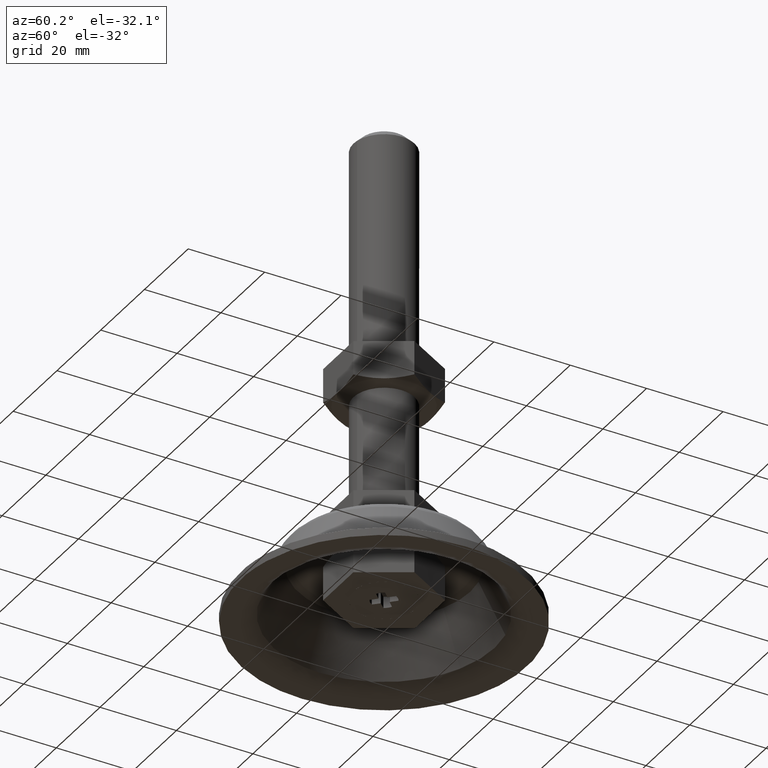
[diagram: clean part render]
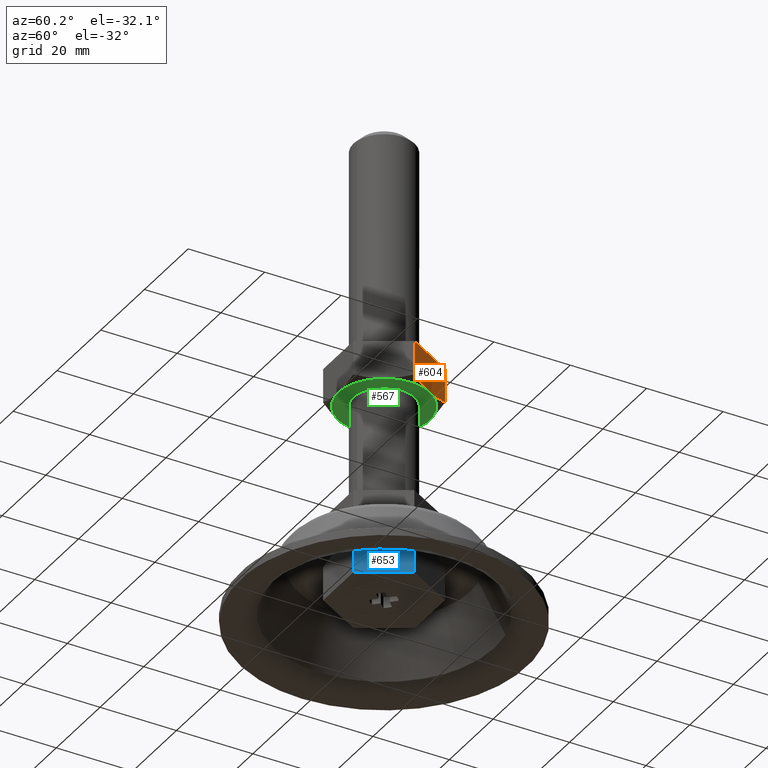
[diagram: same view with three faces highlighted in distinct colors, each labeled with its STEP entity id]
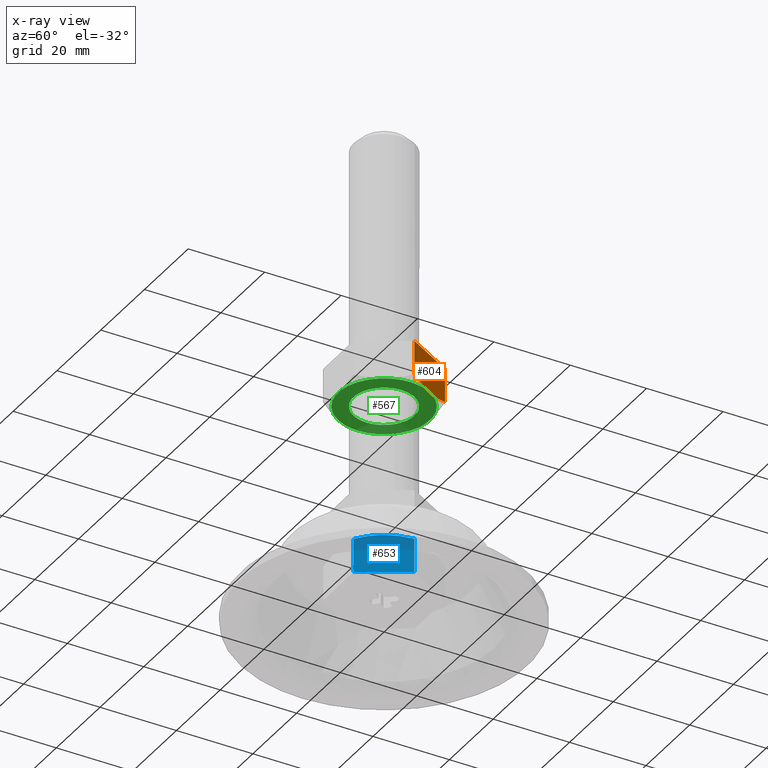
[diagram: x-ray of the same camera — body ghosted, the three highlighted faces saturated]
A machine part, auxiliary view with three faces highlighted in distinct colors.
The next image is the same camera in x-ray (body ghosted, the three faces saturated) — at least one of them is partly hidden behind the body in this view.
Their STEP definitions:

[orange] entity #604 — the highlighted face is a freeform B-spline surface patch.
#96=CARTESIAN_POINT('',(10.125658212932370,6.450755718335135,58.007101989371378));
#97=VERTEX_POINT('',#96);
#103=CARTESIAN_POINT('',(13.850000000000000,-5.167138E-016,59.071796703249987));
#104=VERTEX_POINT('',#103);
#105=CARTESIAN_POINT('',(10.125658212932370,6.450755718335135,58.007101989371378));
#106=CARTESIAN_POINT('',(10.210038043268471,6.304605420740629,58.002846403497273));
#107=CARTESIAN_POINT('',(10.294564689755051,6.158200829620186,58.000631574965396));
#108=CARTESIAN_POINT('',(10.526500947255940,5.756475049477983,58.000262969103602));
#109=CARTESIAN_POINT('',(10.674507272139460,5.500120320191513,58.006339490179009));
#110=CARTESIAN_POINT('',(10.969170929426250,4.989747385975759,58.030917346048682));
#111=CARTESIAN_POINT('',(11.115990930770421,4.735447429900201,58.049390284622497));
#112=CARTESIAN_POINT('',(11.554981850050750,3.975092091522123,58.122558907262622));
#113=CARTESIAN_POINT('',(11.845680240527500,3.471587202013053,58.195045993798082));
#114=CARTESIAN_POINT('',(12.712600177523910,1.970036303936064,58.475035580530331));
#115=CARTESIAN_POINT('',(13.283666643734421,0.980919157844716,58.744822901260783));
#116=CARTESIAN_POINT('',(13.850000000000000,-5.167138E-016,59.071796703249987));
#117=B_SPLINE_CURVE_WITH_KNOTS('',3,(#105,#106,#107,#108,#109,#110,#111,#112,#113,#114,#115,#116),.UNSPECIFIED.,.F.,.U.,(4,2,2,2,2,4),(0.464061722818910,0.500000000000000,0.562500000000000,0.625000000000000,0.750000000000000,1.0),.UNSPECIFIED.);
#118=EDGE_CURVE('',#97,#104,#117,.T.);
#258=CARTESIAN_POINT('',(6.921797000000001,12.0,59.073646796981613));
#259=VERTEX_POINT('',#258);
#282=CARTESIAN_POINT('',(6.921797000000001,12.0,59.073646796981613));
#283=CARTESIAN_POINT('',(7.487396223851416,11.020354509957240,58.746870723399098));
#284=CARTESIAN_POINT('',(8.057124198522770,10.033557812245210,58.477484564008449));
#285=CARTESIAN_POINT('',(8.920642641350582,8.537901644169020,58.197484008929791));
#286=CARTESIAN_POINT('',(9.209973474129754,8.036766490457143,58.124880381440832));
#287=CARTESIAN_POINT('',(9.708341470766662,7.173568738297111,58.040728662463081));
#288=CARTESIAN_POINT('',(9.916549012621756,6.812943087605442,58.017648769318313));
#289=CARTESIAN_POINT('',(10.125658212932370,6.450755718335135,58.007101989371378));
#290=B_SPLINE_CURVE_WITH_KNOTS('',3,(#282,#283,#284,#285,#286,#287,#288,#289),.UNSPECIFIED.,.F.,.U.,(4,2,2,4),(0.0,0.250000000000000,0.375000000000000,0.464061722818910),.UNSPECIFIED.);
#291=EDGE_CURVE('',#259,#97,#290,.T.);
#522=CARTESIAN_POINT('',(13.850000000000000,0.0,68.0));
#523=VERTEX_POINT('',#522);
#529=CARTESIAN_POINT('',(6.921797000000001,12.0,68.0));
#530=VERTEX_POINT('',#529);
#531=CARTESIAN_POINT('',(13.850000000000000,0.0,68.0));
#532=CARTESIAN_POINT('',(6.921797000000001,12.0,68.0));
#533=QUASI_UNIFORM_CURVE('',1,(#531,#532),.UNSPECIFIED.,.F.,.U.);
#534=EDGE_CURVE('',#523,#530,#533,.T.);
#580=CARTESIAN_POINT('',(6.921797000000001,12.0,68.0));
#581=CARTESIAN_POINT('',(6.921797000000001,12.0,59.073646796981613));
#582=QUASI_UNIFORM_CURVE('',1,(#580,#581),.UNSPECIFIED.,.F.,.U.);
#583=EDGE_CURVE('',#530,#259,#582,.T.);
#588=CARTESIAN_POINT('',(6.575733208541248,12.599400089389130,57.501024654651140));
#589=CARTESIAN_POINT('',(14.196063915344730,-0.599400303965811,57.501024654651140));
#590=CARTESIAN_POINT('',(6.575733208541249,12.599400089389130,68.499475289988823));
#591=CARTESIAN_POINT('',(14.196063915344730,-0.599400303965811,68.499475289988823));
#592=B_SPLINE_SURFACE_WITH_KNOTS('',1,1,((#588,#590),(#589,#591)),.UNSPECIFIED.,.F.,.F.,.U.,(2,2),(2,2),(0.0,15.240661793527160),(0.0,10.998450635337679),.UNSPECIFIED.);
#593=ORIENTED_EDGE('',*,*,#118,.F.);
#594=ORIENTED_EDGE('',*,*,#291,.F.);
#595=ORIENTED_EDGE('',*,*,#583,.F.);
#596=ORIENTED_EDGE('',*,*,#534,.F.);
#597=CARTESIAN_POINT('',(13.850000000000000,0.0,68.0));
#598=CARTESIAN_POINT('',(13.850000000000000,-5.167138E-016,59.071796703249987));
#599=QUASI_UNIFORM_CURVE('',1,(#597,#598),.UNSPECIFIED.,.F.,.U.);
#600=EDGE_CURVE('',#523,#104,#599,.T.);
#601=ORIENTED_EDGE('',*,*,#600,.T.);
#602=EDGE_LOOP('',(#593,#594,#595,#596,#601));
#603=FACE_OUTER_BOUND('',#602,.T.);
#604=ADVANCED_FACE('',(#603),#592,.F.);

[blue] entity #653 — the highlighted face is a freeform B-spline surface patch.
#141=CARTESIAN_POINT('',(-6.921797000000001,-12.0,59.073646796981500));
#142=VERTEX_POINT('',#141);
#165=CARTESIAN_POINT('',(-10.125658212932310,-6.450755718335096,58.007101989371343));
#166=VERTEX_POINT('',#165);
#167=CARTESIAN_POINT('',(-6.921797000000001,-12.0,59.073646796981500));
#168=CARTESIAN_POINT('',(-7.487396223851322,-11.020354509957180,58.746870723399063));
#169=CARTESIAN_POINT('',(-8.057124198522686,-10.033557812245149,58.477484564008400));
#170=CARTESIAN_POINT('',(-8.920642641350508,-8.537901644168967,58.197484008929742));
#171=CARTESIAN_POINT('',(-9.209973474129685,-8.036766490457092,58.124880381440761));
#172=CARTESIAN_POINT('',(-9.708341470766602,-7.173568738297067,58.040728662463060));
#173=CARTESIAN_POINT('',(-9.916549012621696,-6.812943087605401,58.017648769318278));
#174=CARTESIAN_POINT('',(-10.125658212932310,-6.450755718335096,58.007101989371343));
#175=B_SPLINE_CURVE_WITH_KNOTS('',3,(#167,#168,#169,#170,#171,#172,#173,#174),.UNSPECIFIED.,.F.,.U.,(4,2,2,4),(0.0,0.250000000000000,0.375000000000000,0.464061722818909),.UNSPECIFIED.);
#176=EDGE_CURVE('',#142,#166,#175,.T.);
#220=CARTESIAN_POINT('',(-13.850000000000000,-1.766622E-016,59.071796703249987));
#221=VERTEX_POINT('',#220);
#222=CARTESIAN_POINT('',(-10.125658212932310,-6.450755718335096,58.007101989371343));
#223=CARTESIAN_POINT('',(-10.210038043268410,-6.304605420740590,58.002846403497223));
#224=CARTESIAN_POINT('',(-10.294564689754999,-6.158200829620145,58.000631574965361));
#225=CARTESIAN_POINT('',(-10.526500947255890,-5.756475049477941,58.000262969103559));
#226=CARTESIAN_POINT('',(-10.674507272139399,-5.500120320191493,58.006339490178974));
#227=CARTESIAN_POINT('',(-10.969170929426200,-4.989747385975742,58.030917346048682));
#228=CARTESIAN_POINT('',(-11.115990930770369,-4.735447429900183,58.049390284622497));
#229=CARTESIAN_POINT('',(-11.554981850050710,-3.975092091522107,58.122558907262608));
#230=CARTESIAN_POINT('',(-11.845680240527461,-3.471587202013042,58.195045993798061));
#231=CARTESIAN_POINT('',(-12.712600177523891,-1.970036303936060,58.475035580530331));
#232=CARTESIAN_POINT('',(-13.283666643734421,-0.980919157844711,58.744822901260761));
#233=CARTESIAN_POINT('',(-13.850000000000000,-1.766622E-016,59.071796703249987));
#234=B_SPLINE_CURVE_WITH_KNOTS('',3,(#222,#223,#224,#225,#226,#227,#228,#229,#230,#231,#232,#233),.UNSPECIFIED.,.F.,.U.,(4,2,2,2,2,4),(0.464061722818909,0.500000000000000,0.562500000000000,0.625000000000000,0.750000000000000,1.0),.UNSPECIFIED.);
#235=EDGE_CURVE('',#166,#221,#234,.T.);
#501=CARTESIAN_POINT('',(-13.850000000000000,0.0,68.0));
#502=VERTEX_POINT('',#501);
#508=CARTESIAN_POINT('',(-6.921797000000001,-12.0,68.0));
#509=VERTEX_POINT('',#508);
#510=CARTESIAN_POINT('',(-13.850000000000000,0.0,68.0));
#511=CARTESIAN_POINT('',(-6.921797000000001,-12.0,68.0));
#512=QUASI_UNIFORM_CURVE('',1,(#510,#511),.UNSPECIFIED.,.F.,.U.);
#513=EDGE_CURVE('',#502,#509,#512,.T.);
#629=CARTESIAN_POINT('',(-6.921797000000001,-12.0,68.0));
#630=CARTESIAN_POINT('',(-6.921797000000001,-12.0,59.073646796981500));
#631=QUASI_UNIFORM_CURVE('',1,(#629,#630),.UNSPECIFIED.,.F.,.U.);
#632=EDGE_CURVE('',#509,#142,#631,.T.);
#637=CARTESIAN_POINT('',(-6.575733208541143,-12.599400089389061,57.501024654651090));
#638=CARTESIAN_POINT('',(-14.196063915344739,0.599400303965808,57.501024654651090));
#639=CARTESIAN_POINT('',(-6.575733208541143,-12.599400089389061,68.499475289988837));
#640=CARTESIAN_POINT('',(-14.196063915344739,0.599400303965808,68.499475289988837));
#641=B_SPLINE_SURFACE_WITH_KNOTS('',1,1,((#637,#639),(#638,#640)),.UNSPECIFIED.,.F.,.F.,.U.,(2,2),(2,2),(0.0,15.240661793527160),(0.0,10.998450635337750),.UNSPECIFIED.);
#642=ORIENTED_EDGE('',*,*,#235,.F.);
#643=ORIENTED_EDGE('',*,*,#176,.F.);
#644=ORIENTED_EDGE('',*,*,#632,.F.);
#645=ORIENTED_EDGE('',*,*,#513,.F.);
#646=CARTESIAN_POINT('',(-13.850000000000000,0.0,68.0));
#647=CARTESIAN_POINT('',(-13.850000000000000,-1.766622E-016,59.071796703249987));
#648=QUASI_UNIFORM_CURVE('',1,(#646,#647),.UNSPECIFIED.,.F.,.U.);
#649=EDGE_CURVE('',#502,#221,#648,.T.);
#650=ORIENTED_EDGE('',*,*,#649,.T.);
#651=EDGE_LOOP('',(#642,#643,#644,#645,#650));
#652=FACE_OUTER_BOUND('',#651,.T.);
#653=ADVANCED_FACE('',(#652),#641,.F.);

[green] entity #567 — the highlighted face is a freeform B-spline surface patch.
#62=CARTESIAN_POINT('',(-10.115294292789720,-6.444153173358881,58.000000000002707));
#63=VERTEX_POINT('',#62);
#64=CARTESIAN_POINT('',(11.993593654586739,0.0,58.0));
#65=VERTEX_POINT('',#64);
#66=CARTESIAN_POINT('',(-10.115294292789716,-6.444153173358881,58.000000000002707));
#67=CARTESIAN_POINT('',(-6.579910797955506,-11.993593654586743,57.999999999999993));
#68=CARTESIAN_POINT('',(0.0,-11.993593654586739,58.0));
#69=CARTESIAN_POINT('',(11.993593654586743,-11.993593654586743,58.0));
#70=CARTESIAN_POINT('',(11.993593654586739,0.0,58.0));
#78=(BOUNDED_CURVE()B_SPLINE_CURVE(2,(#66,#67,#68,#69,#70),.UNSPECIFIED.,.F.,.U.)B_SPLINE_CURVE_WITH_KNOTS((3,2,3),(0.091950076716405,0.250000000000000,0.500000000000000),.UNSPECIFIED.)CURVE()GEOMETRIC_REPRESENTATION_ITEM()RATIONAL_B_SPLINE_CURVE((0.863791038909963,0.814832996944995,1.0,0.707106781186548,1.0))REPRESENTATION_ITEM(''));
#79=EDGE_CURVE('',#63,#65,#78,.T.);
#81=CARTESIAN_POINT('',(10.115294292789720,6.444153173358879,58.000000000002700));
#82=VERTEX_POINT('',#81);
#83=CARTESIAN_POINT('',(11.993593654586739,0.0,58.0));
#84=CARTESIAN_POINT('',(11.993593654586743,3.495813755726101,58.000000000000007));
#85=CARTESIAN_POINT('',(10.115294292789716,6.444153173358879,58.000000000002693));
#93=(BOUNDED_CURVE()B_SPLINE_CURVE(2,(#83,#84,#85),.UNSPECIFIED.,.F.,.U.)B_SPLINE_CURVE_WITH_KNOTS((3,3),(0.500000000000000,0.591950076716405),.UNSPECIFIED.)CURVE()GEOMETRIC_REPRESENTATION_ITEM()RATIONAL_B_SPLINE_CURVE((1.0,0.892273784241553,0.863791038909964))REPRESENTATION_ITEM(''));
#94=EDGE_CURVE('',#65,#82,#93,.T.);
#204=CARTESIAN_POINT('',(-11.993593654586739,0.0,58.0));
#205=VERTEX_POINT('',#204);
#206=CARTESIAN_POINT('',(-11.993593654586739,0.0,58.0));
#207=CARTESIAN_POINT('',(-11.993593654586746,-3.495813755726113,58.000000000000007));
#208=CARTESIAN_POINT('',(-10.115294292789716,-6.444153173358881,58.000000000002707));
#216=(BOUNDED_CURVE()B_SPLINE_CURVE(2,(#206,#207,#208),.UNSPECIFIED.,.F.,.U.)B_SPLINE_CURVE_WITH_KNOTS((3,3),(0.0,0.091950076716405),.UNSPECIFIED.)CURVE()GEOMETRIC_REPRESENTATION_ITEM()RATIONAL_B_SPLINE_CURVE((1.0,0.892273784241553,0.863791038909963))REPRESENTATION_ITEM(''));
#217=EDGE_CURVE('',#205,#63,#216,.T.);
#294=CARTESIAN_POINT('',(10.115294292789716,6.444153173358879,58.000000000002700));
#295=CARTESIAN_POINT('',(6.579910797955506,11.993593654586741,57.999999999999993));
#296=CARTESIAN_POINT('',(0.0,11.993593654586739,58.0));
#297=CARTESIAN_POINT('',(-11.993593654586743,11.993593654586743,58.0));
#298=CARTESIAN_POINT('',(-11.993593654586739,0.0,58.0));
#306=(BOUNDED_CURVE()B_SPLINE_CURVE(2,(#294,#295,#296,#297,#298),.UNSPECIFIED.,.F.,.U.)B_SPLINE_CURVE_WITH_KNOTS((3,2,3),(0.591950076716405,0.750000000000000,1.0),.UNSPECIFIED.)CURVE()GEOMETRIC_REPRESENTATION_ITEM()RATIONAL_B_SPLINE_CURVE((0.863791038909963,0.814832996944995,1.0,0.707106781186548,1.0))REPRESENTATION_ITEM(''));
#307=EDGE_CURVE('',#82,#205,#306,.T.);
#347=CARTESIAN_POINT('',(-0.627672766028897,-7.975338669848799,58.0));
#348=VERTEX_POINT('',#347);
#354=CARTESIAN_POINT('',(-8.0,0.0,58.0));
#355=VERTEX_POINT('',#354);
#356=CARTESIAN_POINT('',(-8.0,0.0,58.0));
#357=CARTESIAN_POINT('',(-8.0,-7.395123932882197,58.0));
#358=CARTESIAN_POINT('',(-0.627672766028897,-7.975338669848799,58.0));
#366=(BOUNDED_CURVE()B_SPLINE_CURVE(2,(#356,#357,#358),.UNSPECIFIED.,.F.,.U.)B_SPLINE_CURVE_WITH_KNOTS((3,3),(0.0,0.236331300623905),.UNSPECIFIED.)CURVE()GEOMETRIC_REPRESENTATION_ITEM()RATIONAL_B_SPLINE_CURVE((1.0,0.723120658615579,0.969723356153322))REPRESENTATION_ITEM(''));
#367=EDGE_CURVE('',#355,#348,#366,.T.);
#369=CARTESIAN_POINT('',(0.627672766028898,7.975338669848799,58.0));
#370=VERTEX_POINT('',#369);
#371=CARTESIAN_POINT('',(0.627672766028898,7.975338669848799,58.0));
#372=CARTESIAN_POINT('',(0.314320856268450,8.0,58.000000000000007));
#373=CARTESIAN_POINT('',(0.0,8.0,58.0));
#374=CARTESIAN_POINT('',(-8.0,8.0,58.0));
#375=CARTESIAN_POINT('',(-8.0,0.0,58.0));
#383=(BOUNDED_CURVE()B_SPLINE_CURVE(2,(#371,#372,#373,#374,#375),.UNSPECIFIED.,.F.,.U.)B_SPLINE_CURVE_WITH_KNOTS((3,2,3),(0.736331300623905,0.750000000000000,1.0),.UNSPECIFIED.)CURVE()GEOMETRIC_REPRESENTATION_ITEM()RATIONAL_B_SPLINE_CURVE((0.969723356153322,0.983986122570969,1.0,0.707106781186548,1.0))REPRESENTATION_ITEM(''));
#384=EDGE_CURVE('',#370,#355,#383,.T.);
#460=CARTESIAN_POINT('',(8.0,0.0,58.0));
#461=VERTEX_POINT('',#460);
#462=CARTESIAN_POINT('',(8.0,0.0,58.0));
#463=CARTESIAN_POINT('',(8.0,7.395123932882148,58.000000000000007));
#464=CARTESIAN_POINT('',(0.627672766028898,7.975338669848799,58.000000000000007));
#472=(BOUNDED_CURVE()B_SPLINE_CURVE(2,(#462,#463,#464),.UNSPECIFIED.,.F.,.U.)B_SPLINE_CURVE_WITH_KNOTS((3,3),(0.500000000000000,0.736331300623904),.UNSPECIFIED.)CURVE()GEOMETRIC_REPRESENTATION_ITEM()RATIONAL_B_SPLINE_CURVE((1.0,0.723120658615580,0.969723356153320))REPRESENTATION_ITEM(''));
#473=EDGE_CURVE('',#461,#370,#472,.T.);
#475=CARTESIAN_POINT('',(-0.627672766028897,-7.975338669848799,58.0));
#476=CARTESIAN_POINT('',(-0.314320856268448,-8.0,58.000000000000007));
#477=CARTESIAN_POINT('',(0.0,-8.0,58.0));
#478=CARTESIAN_POINT('',(8.0,-8.0,58.0));
#479=CARTESIAN_POINT('',(8.0,0.0,58.0));
#487=(BOUNDED_CURVE()B_SPLINE_CURVE(2,(#475,#476,#477,#478,#479),.UNSPECIFIED.,.F.,.U.)B_SPLINE_CURVE_WITH_KNOTS((3,2,3),(0.236331300623906,0.250000000000000,0.500000000000000),.UNSPECIFIED.)CURVE()GEOMETRIC_REPRESENTATION_ITEM()RATIONAL_B_SPLINE_CURVE((0.969723356153322,0.983986122570969,1.0,0.707106781186548,1.0))REPRESENTATION_ITEM(''));
#488=EDGE_CURVE('',#348,#461,#487,.T.);
#550=CARTESIAN_POINT('',(-13.191753078139950,13.187233259247209,58.0));
#551=CARTESIAN_POINT('',(13.191752434753450,13.187233259247209,58.0));
#552=CARTESIAN_POINT('',(-13.191753078139950,-13.187232830322870,58.0));
#553=CARTESIAN_POINT('',(13.191752434753450,-13.187232830322870,58.0));
#554=B_SPLINE_SURFACE_WITH_KNOTS('',1,1,((#550,#552),(#551,#553)),.UNSPECIFIED.,.F.,.F.,.U.,(2,2),(2,2),(0.0,26.383505512893390),(0.0,26.374466089570081),.UNSPECIFIED.);
#555=ORIENTED_EDGE('',*,*,#307,.F.);
#556=ORIENTED_EDGE('',*,*,#94,.F.);
#557=ORIENTED_EDGE('',*,*,#79,.F.);
#558=ORIENTED_EDGE('',*,*,#217,.F.);
#559=EDGE_LOOP('',(#555,#556,#557,#558));
#560=FACE_OUTER_BOUND('',#559,.T.);
#561=ORIENTED_EDGE('',*,*,#473,.T.);
#562=ORIENTED_EDGE('',*,*,#384,.T.);
#563=ORIENTED_EDGE('',*,*,#367,.T.);
#564=ORIENTED_EDGE('',*,*,#488,.T.);
#565=EDGE_LOOP('',(#561,#562,#563,#564));
#566=FACE_BOUND('',#565,.T.);
#567=ADVANCED_FACE('',(#560,#566),#554,.T.);